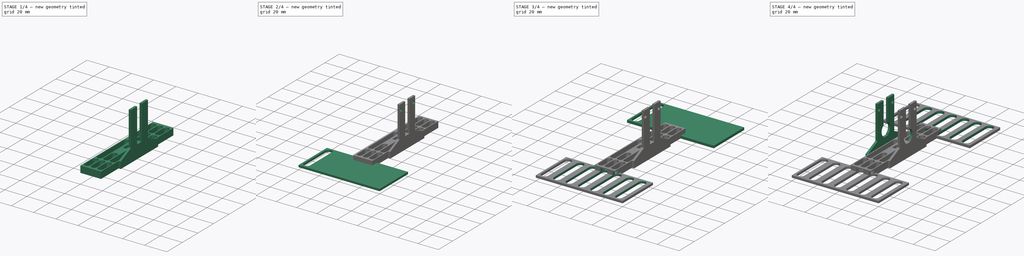
[diagram: build sequence overview — one tinted view per stage of 4, left to right]
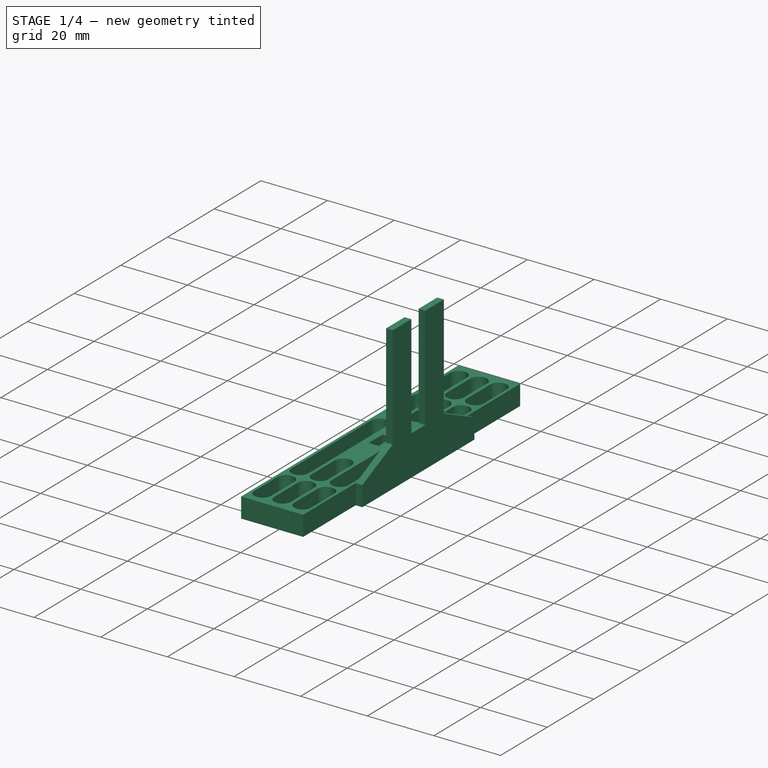
[diagram: stage 1 of 4 — iso view after this stage's code; geometry added in this stage tinted green]
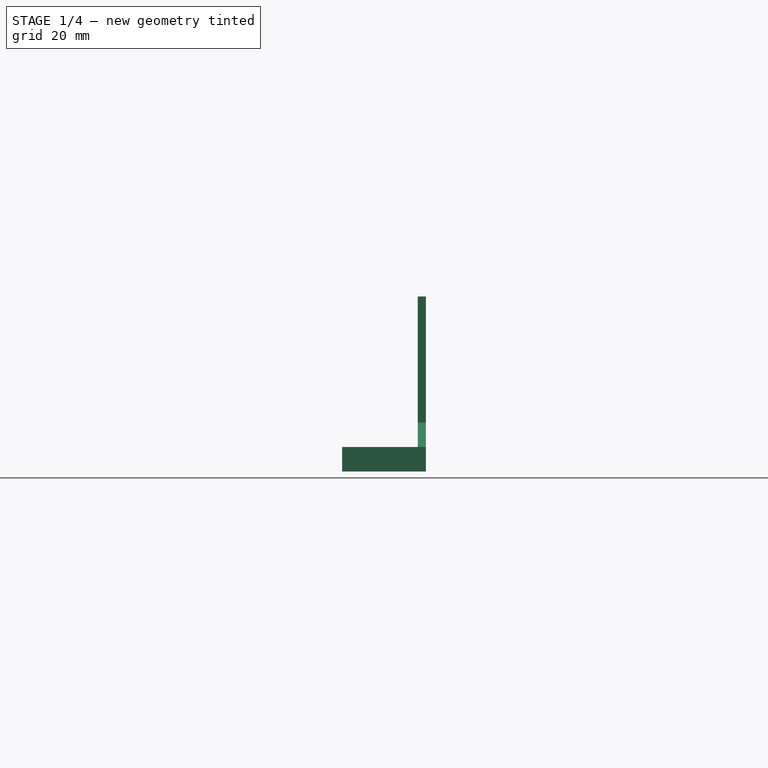
[diagram: stage 1 of 4 — front view after this stage's code; geometry added in this stage tinted green]
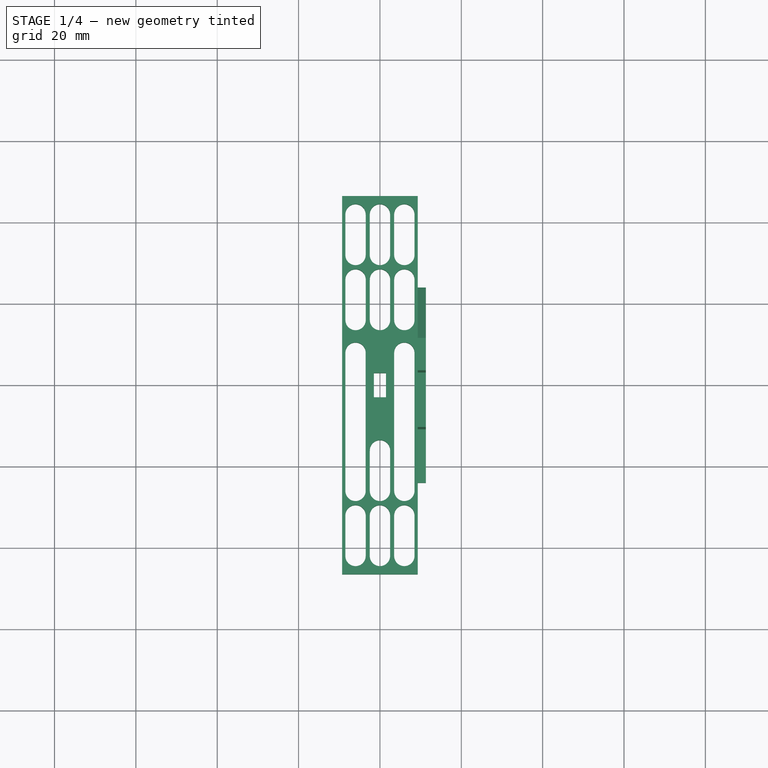
[diagram: stage 1 of 4 — top view after this stage's code; geometry added in this stage tinted green]
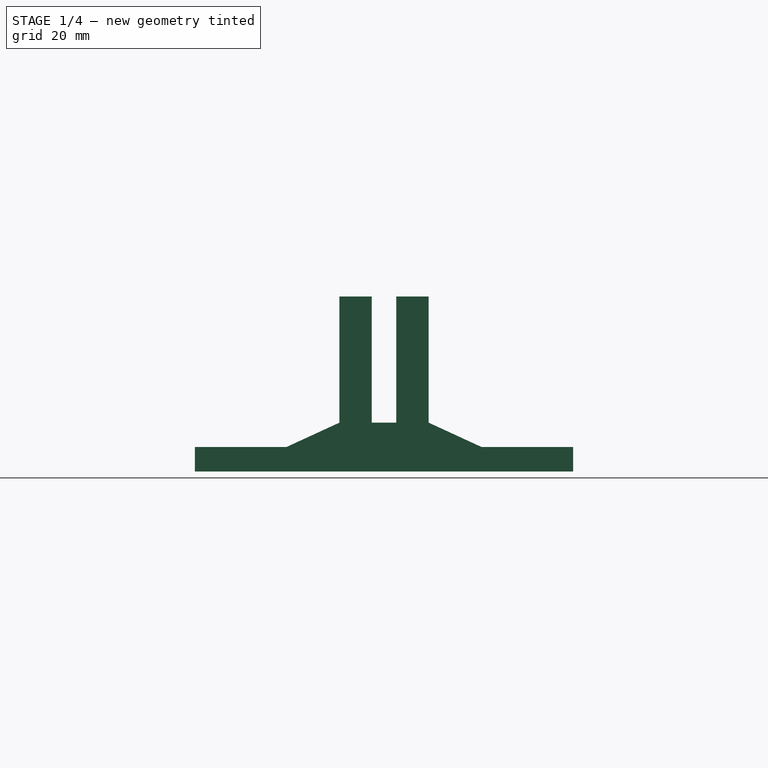
[diagram: stage 1 of 4 — right view after this stage's code; geometry added in this stage tinted green]
FCSTD DOCUMENT  (FreeCAD 0.19RUnknown)
Label: bar-car-3
License: All rights reserved
LicenseURL: http://en.wikipedia.org/wiki/All_rights_reserved
objects: Sketcher::SketchObject×10, PartDesign::Pocket×7, PartDesign::Pad×4, PartDesign::LinearPattern×2, PartDesign::Mirrored×1, PartDesign::Body×1
note: 36 computed .brp shape members not serialized (recipe doc carries the construction recipe); baked Part::Feature solids carry a one-line shape summary decoded from their .brp

FEATURE [Sketcher::SketchObject] Sketch
  FullyConstrained = false
  MapMode = 5
  Support = -> [XY_Plane]
  sketch-geometry (4):
    g0: LineSegment StartX=-9.3 StartY=46.5 StartZ=0 EndX=9.3 EndY=46.5 EndZ=0
    g1: LineSegment StartX=9.3 StartY=46.5 StartZ=0 EndX=9.3 EndY=-46.5 EndZ=0
    g2: LineSegment StartX=9.3 StartY=-46.5 StartZ=0 EndX=-9.3 EndY=-46.5 EndZ=0
    g3: LineSegment StartX=-9.3 StartY=-46.5 StartZ=0 EndX=-9.3 EndY=46.5 EndZ=0
  constraints (8):
    c: Coincident(g0,g1)
    c: Coincident(g1,g2)
    c: Coincident(g2,g3)
    c: Coincident(g3,g0)
    c: Horizontal(g0)
    c: Horizontal(g2)
    c: Vertical(g1)
    c: Vertical(g3)
FEATURE [PartDesign::Pad] Pad  label="Mittelbalken"
  Direction = (1,1,1)
  Length = 6
  Length2 = 100
  Profile = -> Sketch
  Reversed = true
  Type = 0
FEATURE [Sketcher::SketchObject] Sketch001
  FullyConstrained = false
  MapMode = 5
  Support = -> [Pad]
  sketch-geometry (4):
    g0: LineSegment StartX=-1.5 StartY=3 StartZ=0 EndX=1.5 EndY=3 EndZ=0
    g1: LineSegment StartX=1.5 StartY=3 StartZ=0 EndX=1.5 EndY=-3 EndZ=0
    g2: LineSegment StartX=1.5 StartY=-3 StartZ=0 EndX=-1.5 EndY=-3 EndZ=0
    g3: LineSegment StartX=-1.5 StartY=-3 StartZ=0 EndX=-1.5 EndY=3 EndZ=0
  constraints (8):
    c: Coincident(g0,g1)
    c: Coincident(g1,g2)
    c: Coincident(g2,g3)
    c: Coincident(g3,g0)
    c: Horizontal(g0)
    c: Horizontal(g2)
    c: Vertical(g1)
    c: Vertical(g3)
FEATURE [PartDesign::Pocket] Pocket
  BaseFeature = -> Pad
  Length = 6
  Length2 = 100
  Profile = -> Sketch001
  Type = 0
FEATURE [Sketcher::SketchObject] Sketch002
  FullyConstrained = false
  MapMode = 5
  Support = -> [Pocket]
  sketch-geometry (48):
    g0: ArcOfCircle CenterX=0 CenterY=-42 CenterZ=0 NormalX=0 NormalY=0 NormalZ=1 AngleXU=0 Radius=2.5 StartAngle=3.14159 EndAngle=6.28319
    g1: ArcOfCircle CenterX=0 CenterY=-32 CenterZ=0 NormalX=0 NormalY=0 NormalZ=1 AngleXU=0 Radius=2.5 StartAngle=0 EndAngle=3.14159
    g2: LineSegment StartX=2.5 StartY=-42 StartZ=0 EndX=2.5 EndY=-32 EndZ=0
    g3: LineSegment StartX=-2.5 StartY=-42 StartZ=0 EndX=-2.5 EndY=-32 EndZ=0
    g4: ArcOfCircle CenterX=-6 CenterY=-42 CenterZ=0 NormalX=0 NormalY=0 NormalZ=1 AngleXU=0 Radius=2.5 StartAngle=3.14159 EndAngle=6.28319
    g5: ArcOfCircle CenterX=-6 CenterY=-32 CenterZ=0 NormalX=0 NormalY=0 NormalZ=1 AngleXU=0 Radius=2.5 StartAngle=0 EndAngle=3.14159
    g6: LineSegment StartX=-3.5 StartY=-42 StartZ=0 EndX=-3.5 EndY=-32 EndZ=0
    g7: LineSegment StartX=-8.5 StartY=-42 StartZ=0 EndX=-8.5 EndY=-32 EndZ=0
    g8: ArcOfCircle CenterX=6 CenterY=-42 CenterZ=0 NormalX=0 NormalY=0 NormalZ=1 AngleXU=0 Radius=2.5 StartAngle=3.14159 EndAngle=6.28319
    g9: ArcOfCircle CenterX=6 CenterY=-32 CenterZ=0 NormalX=0 NormalY=0 NormalZ=1 AngleXU=0 Radius=2.5 StartAngle=0 EndAngle=3.14159
    g10: LineSegment StartX=8.5 StartY=-42 StartZ=0 EndX=8.5 EndY=-32 EndZ=0
    g11: LineSegment StartX=3.5 StartY=-42 StartZ=0 EndX=3.5 EndY=-32 EndZ=0
    g12: ArcOfCircle CenterX=0.012218 CenterY=-26 CenterZ=0 NormalX=0 NormalY=0 NormalZ=1 AngleXU=0 Radius=2.5 StartAngle=3.14159 EndAngle=6.28319
    g13: ArcOfCircle CenterX=0.012218 CenterY=-16 CenterZ=0 NormalX=0 NormalY=0 NormalZ=1 AngleXU=0 Radius=2.5 StartAngle=0 EndAngle=3.14159
    g14: LineSegment StartX=2.51222 StartY=-26 StartZ=0 EndX=2.51222 EndY=-16 EndZ=0
    g15: LineSegment StartX=-2.48778 StartY=-26 StartZ=0 EndX=-2.48778 EndY=-16 EndZ=0
    g16: ArcOfCircle CenterX=-6 CenterY=-26 CenterZ=0 NormalX=0 NormalY=0 NormalZ=1 AngleXU=0 Radius=2.49695 StartAngle=3.14159 EndAngle=6.28319
    g17: ArcOfCircle CenterX=-6 CenterY=8 CenterZ=0 NormalX=0 NormalY=0 NormalZ=1 AngleXU=0 Radius=2.49695 StartAngle=0 EndAngle=3.14159
    g18: LineSegment StartX=-3.50305 StartY=-26 StartZ=0 EndX=-3.50305 EndY=8 EndZ=0
    g19: LineSegment StartX=-8.49695 StartY=-26 StartZ=0 EndX=-8.49695 EndY=8 EndZ=0
    g20: ArcOfCircle CenterX=6 CenterY=-26 CenterZ=0 NormalX=0 NormalY=0 NormalZ=1 AngleXU=0 Radius=2.49695 StartAngle=3.14159 EndAngle=6.28319
    g21: ArcOfCircle CenterX=6 CenterY=8 CenterZ=0 NormalX=0 NormalY=0 NormalZ=1 AngleXU=0 Radius=2.49695 StartAngle=0 EndAngle=3.14159
    g22: LineSegment StartX=8.49695 StartY=-26 StartZ=0 EndX=8.49695 EndY=8 EndZ=0
    g23: LineSegment StartX=3.50305 StartY=-26 StartZ=0 EndX=3.50305 EndY=8 EndZ=0
    g24: ArcOfCircle CenterX=0 CenterY=42 CenterZ=0 NormalX=0 NormalY=0 NormalZ=1 AngleXU=0 Radius=2.5 StartAngle=0 EndAngle=3.14159
    g25: ArcOfCircle CenterX=0 CenterY=32 CenterZ=0 NormalX=0 NormalY=0 NormalZ=1 AngleXU=0 Radius=2.5 StartAngle=3.14159 EndAngle=6.28319
    g26: LineSegment StartX=2.5 StartY=42 StartZ=0 EndX=2.5 EndY=32 EndZ=0
    g27: LineSegment StartX=-2.5 StartY=42 StartZ=0 EndX=-2.5 EndY=32 EndZ=0
    g28: ArcOfCircle CenterX=-6 CenterY=42 CenterZ=0 NormalX=0 NormalY=0 NormalZ=1 AngleXU=0 Radius=2.5 StartAngle=0 EndAngle=3.14159
    g29: ArcOfCircle CenterX=-6 CenterY=32 CenterZ=0 NormalX=0 NormalY=0 NormalZ=1 AngleXU=0 Radius=2.5 StartAngle=3.14159 EndAngle=6.28319
    g30: LineSegment StartX=-3.5 StartY=42 StartZ=0 EndX=-3.5 EndY=32 EndZ=0
    g31: LineSegment StartX=-8.5 StartY=42 StartZ=0 EndX=-8.5 EndY=32 EndZ=0
    g32: ArcOfCircle CenterX=6 CenterY=42 CenterZ=0 NormalX=0 NormalY=0 NormalZ=1 AngleXU=0 Radius=2.5 StartAngle=0 EndAngle=3.14159
    g33: ArcOfCircle CenterX=6 CenterY=32 CenterZ=0 NormalX=0 NormalY=0 NormalZ=1 AngleXU=0 Radius=2.5 StartAngle=3.14159 EndAngle=6.28319
    g34: LineSegment StartX=8.5 StartY=42 StartZ=0 EndX=8.5 EndY=32 EndZ=0
    g35: LineSegment StartX=3.5 StartY=42 StartZ=0 EndX=3.5 EndY=32 EndZ=0
    g36: ArcOfCircle CenterX=0.012218 CenterY=26 CenterZ=0 NormalX=0 NormalY=0 NormalZ=1 AngleXU=0 Radius=2.5 StartAngle=0 EndAngle=3.14159
    g37: ArcOfCircle CenterX=0.012218 CenterY=16 CenterZ=0 NormalX=0 NormalY=0 NormalZ=1 AngleXU=0 Radius=2.5 StartAngle=3.14159 EndAngle=6.28319
    g38: LineSegment StartX=2.51222 StartY=26 StartZ=0 EndX=2.51222 EndY=16 EndZ=0
    g39: LineSegment StartX=-2.48778 StartY=26 StartZ=0 EndX=-2.48778 EndY=16 EndZ=0
    g40: ArcOfCircle CenterX=-5.98778 CenterY=26 CenterZ=0 NormalX=0 NormalY=0 NormalZ=1 AngleXU=0 Radius=2.5 StartAngle=0 EndAngle=3.14159
    g41: ArcOfCircle CenterX=-5.98778 CenterY=16 CenterZ=0 NormalX=0 NormalY=0 NormalZ=1 AngleXU=0 Radius=2.5 StartAngle=3.14159 EndAngle=6.28319
    g42: LineSegment StartX=-3.48778 StartY=26 StartZ=0 EndX=-3.48778 EndY=16 EndZ=0
    g43: LineSegment StartX=-8.48778 StartY=26 StartZ=0 EndX=-8.48778 EndY=16 EndZ=0
    g44: ArcOfCircle CenterX=6 CenterY=26 CenterZ=0 NormalX=0 NormalY=0 NormalZ=1 AngleXU=0 Radius=2.49695 StartAngle=0 EndAngle=3.14159
    g45: ArcOfCircle CenterX=6 CenterY=16 CenterZ=0 NormalX=0 NormalY=0 NormalZ=1 AngleXU=0 Radius=2.49695 StartAngle=3.14159 EndAngle=6.28319
    g46: LineSegment StartX=8.49695 StartY=26 StartZ=0 EndX=8.49695 EndY=16 EndZ=0
    g47: LineSegment StartX=3.50305 StartY=26 StartZ=0 EndX=3.50305 EndY=16 EndZ=0
  constraints (73):
    c: Tangent(g0,g3) = 1.5708
    c: Tangent(g0,g2) = -1.5708
    c: Tangent(g2,g1) = -1.5708
    c: Tangent(g3,g1) = 1.5708
    c: Vertical(g2)
    c: Equal(g0,g1)
    c: PointOnObject(g0,g-2)
    c: Tangent(g4,g7) = 1.5708
    c: Tangent(g4,g6) = -1.5708
    c: Tangent(g6,g5) = -1.5708
    c: Tangent(g7,g5) = 1.5708
    c: Vertical(g6)
    c: Equal(g4,g5)
    c: Tangent(g8,g11) = 1.5708
    c: Tangent(g8,g10) = -1.5708
    c: Tangent(g10,g9) = -1.5708
    c: Tangent(g11,g9) = 1.5708
    c: Vertical(g10)
    c: Equal(g8,g9)
    c: Tangent(g12,g15) = 1.5708
    c: Tangent(g12,g14) = -1.5708
    c: Tangent(g14,g13) = -1.5708
    c: Tangent(g15,g13) = 1.5708
    c: Vertical(g14)
    c: Equal(g12,g13)
    c: Tangent(g16,g19) = 1.5708
    c: Tangent(g16,g18) = -1.5708
    c: Tangent(g18,g17) = -1.5708
    c: Tangent(g19,g17) = 1.5708
    c: Vertical(g18)
    c: Equal(g16,g17)
    c: Tangent(g20,g23) = 1.5708
    c: Tangent(g20,g22) = -1.5708
    c: Tangent(g22,g21) = -1.5708
    c: Tangent(g23,g21) = 1.5708
    c: Vertical(g22)
    c: Equal(g20,g21)
    c: Tangent(g24,g27) = -1.5708
    c: Tangent(g24,g26) = 1.5708
    c: Tangent(g26,g25) = 1.5708
    c: Tangent(g27,g25) = -1.5708
    c: Vertical(g26)
    c: Equal(g24,g25)
    c: Tangent(g28,g31) = -1.5708
    c: Tangent(g28,g30) = 1.5708
    c: Tangent(g30,g29) = 1.5708
    c: Tangent(g31,g29) = -1.5708
    c: Vertical(g30)
    c: Equal(g28,g29)
    c: Tangent(g32,g35) = -1.5708
    c: Tangent(g32,g34) = 1.5708
    c: Tangent(g34,g33) = 1.5708
    c: Tangent(g35,g33) = -1.5708
    c: Vertical(g34)
    c: Equal(g32,g33)
    c: Tangent(g36,g39) = -1.5708
    c: Tangent(g36,g38) = 1.5708
    c: Tangent(g38,g37) = 1.5708
    c: Tangent(g39,g37) = -1.5708
    c: Vertical(g38)
    c: Equal(g36,g37)
    c: Tangent(g40,g43) = -1.5708
    c: Tangent(g40,g42) = 1.5708
    c: Tangent(g42,g41) = 1.5708
    c: Tangent(g43,g41) = -1.5708
    c: Vertical(g42)
    c: Equal(g40,g41)
    c: Tangent(g44,g47) = -1.5708
    c: Tangent(g44,g46) = 1.5708
    c: Tangent(g46,g45) = 1.5708
    c: Tangent(g47,g45) = -1.5708
    c: Vertical(g46)
    c: Equal(g44,g45)
FEATURE [PartDesign::Pocket] Pocket001
  BaseFeature = -> Pocket
  Length = 8
  Length2 = 100
  Profile = -> Sketch002
  Type = 0
FEATURE [Sketcher::SketchObject] Sketch003
  FullyConstrained = false
  MapMode = 5
  Placement = pos=(9.3,0,0) rot=(0.57735,0.57735,0.57735;2.0944rad)
  Support = -> [Pocket001]
  sketch-geometry (12):
    g0: LineSegment StartX=-24 StartY=-6 StartZ=0 EndX=-24 EndY=0 EndZ=0
    g1: LineSegment StartX=-24 StartY=0 StartZ=0 EndX=-10.9609 EndY=6 EndZ=0
    g2: LineSegment StartX=-10.9609 StartY=6 StartZ=0 EndX=-10.9609 EndY=37 EndZ=0
    g3: LineSegment StartX=-10.9609 StartY=37 StartZ=0 EndX=-3 EndY=37 EndZ=0
    g4: LineSegment StartX=-3 StartY=37 StartZ=0 EndX=-3 EndY=6 EndZ=0
    g5: LineSegment StartX=-3 StartY=6 StartZ=0 EndX=3 EndY=6 EndZ=0
    g6: LineSegment StartX=3 StartY=6 StartZ=0 EndX=3 EndY=37 EndZ=0
    g7: LineSegment StartX=3 StartY=37 StartZ=0 EndX=10.9718 EndY=37 EndZ=0
    g8: LineSegment StartX=10.9718 StartY=37 StartZ=0 EndX=10.9718 EndY=6 EndZ=0
    g9: LineSegment StartX=10.9718 StartY=6 StartZ=0 EndX=24 EndY=0 EndZ=0
    g10: LineSegment StartX=24 StartY=0 StartZ=0 EndX=24 EndY=-6 EndZ=0
    g11: LineSegment StartX=24 StartY=-6 StartZ=0 EndX=-24 EndY=-6 EndZ=0
  constraints (24):
    c: PointOnObject(g0,g-1)
    c: Vertical(g0)
    c: Coincident(g0,g1)
    c: Coincident(g1,g2)
    c: Vertical(g2)
    c: Coincident(g2,g3)
    c: Horizontal(g3)
    c: Coincident(g3,g4)
    c: Vertical(g4)
    c: Coincident(g4,g5)
    c: Horizontal(g5)
    c: Coincident(g5,g6)
    c: Vertical(g6)
    c: Coincident(g6,g7)
    c: Horizontal(g7)
    c: Coincident(g7,g8)
    c: Vertical(g8)
    c: Coincident(g8,g9)
    c: PointOnObject(g9,g-1)
    c: Coincident(g9,g10)
    c: Vertical(g10)
    c: Coincident(g10,g11)
    c: Coincident(g11,g0)
    c: Horizontal(g11)
FEATURE [PartDesign::Pad] Pad001  label="flans1"
  BaseFeature = -> Pocket001
  Direction = (1,1,1)
  Length = 2
  Length2 = 100
  Profile = -> Sketch003
  Type = 0
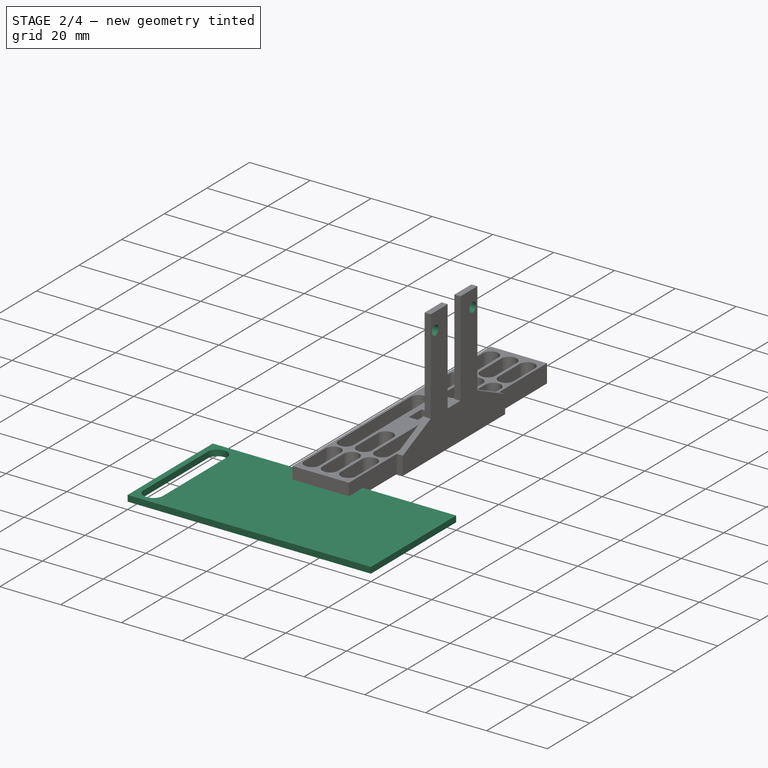
[diagram: stage 2 of 4 — iso view after this stage's code; geometry added in this stage tinted green]
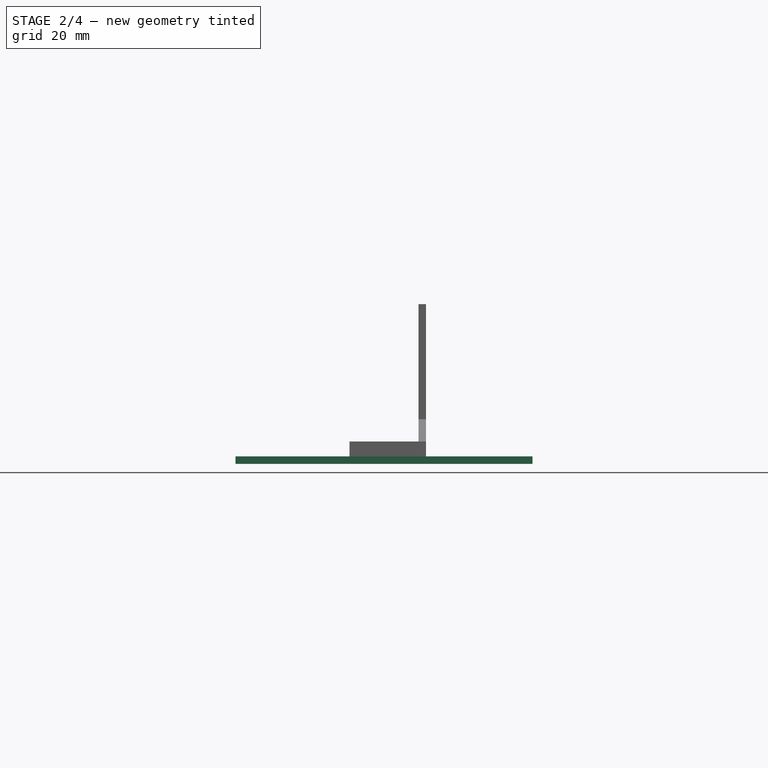
[diagram: stage 2 of 4 — front view after this stage's code; geometry added in this stage tinted green]
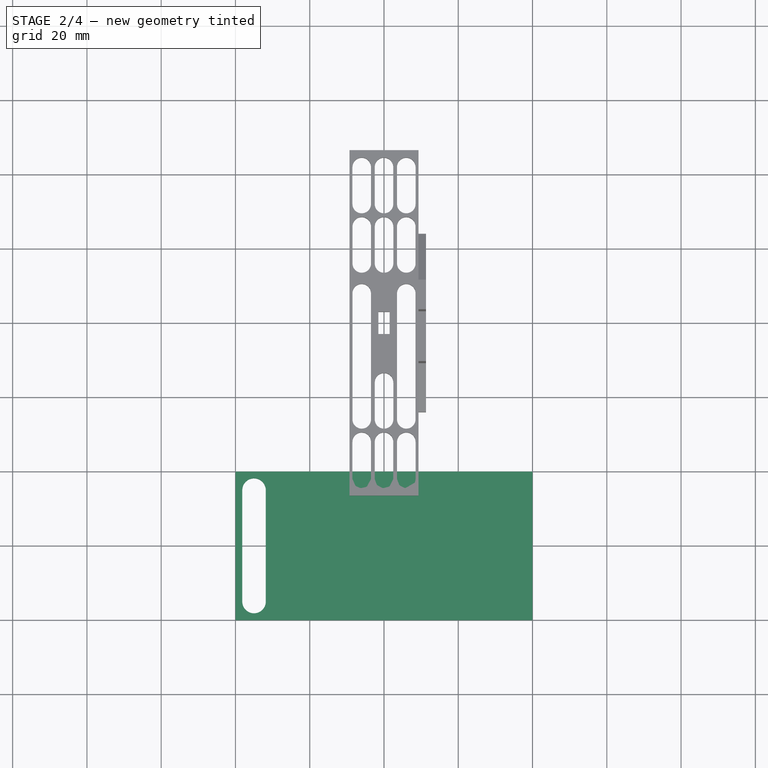
[diagram: stage 2 of 4 — top view after this stage's code; geometry added in this stage tinted green]
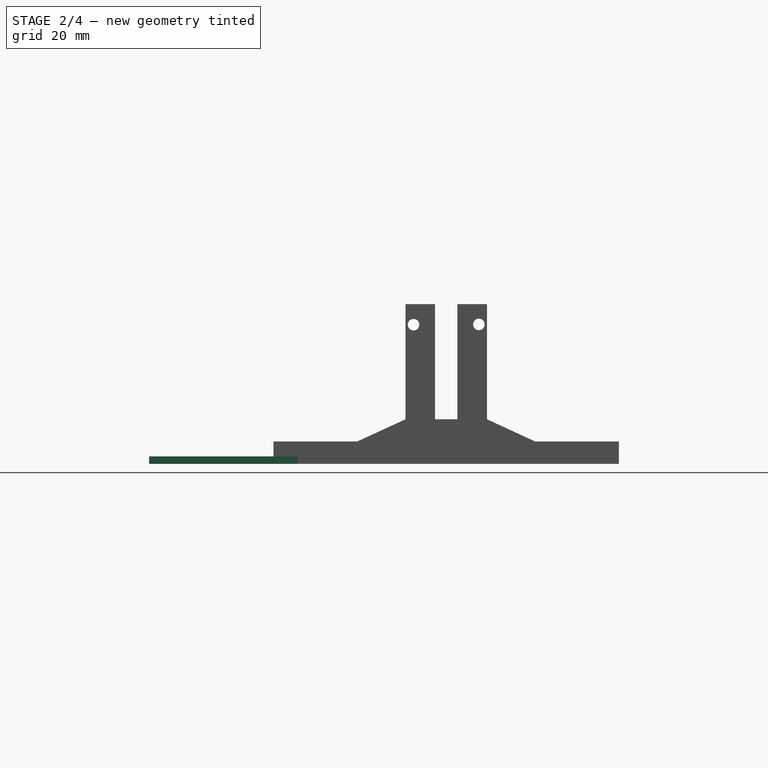
[diagram: stage 2 of 4 — right view after this stage's code; geometry added in this stage tinted green]
FEATURE [Sketcher::SketchObject] Sketch004
  FullyConstrained = false
  MapMode = 5
  Placement = pos=(11.3,0,0) rot=(0.57735,0.57735,0.57735;2.0944rad)
  sketch-geometry (2):
    g0: Circle CenterX=-8.8 CenterY=31.4641 CenterZ=0 NormalX=0 NormalY=0 NormalZ=1 AngleXU=0 Radius=1.55185
    g1: Circle CenterX=8.8 CenterY=31.5414 CenterZ=0 NormalX=0 NormalY=0 NormalZ=1 AngleXU=0 Radius=1.55214
FEATURE [PartDesign::Pocket] Pocket002  label="MotorHole"
  BaseFeature = -> Pad001
  Length = 4
  Length2 = 100
  Profile = -> Sketch004
  Type = 1
FEATURE [Sketcher::SketchObject] Sketch005
  FullyConstrained = false
  MapMode = 5
  Placement = pos=(0,0,-6) rot=(1,0,0;3.14159rad)
  Support = -> [Pocket002]
  sketch-geometry (4):
    g0: LineSegment StartX=-40 StartY=40 StartZ=0 EndX=40 EndY=40 EndZ=0
    g1: LineSegment StartX=40 StartY=40 StartZ=0 EndX=40 EndY=80 EndZ=0
    g2: LineSegment StartX=40 StartY=80 StartZ=0 EndX=-40 EndY=80 EndZ=0
    g3: LineSegment StartX=-40 StartY=80 StartZ=0 EndX=-40 EndY=40 EndZ=0
  constraints (8):
    c: Coincident(g0,g1)
    c: Coincident(g1,g2)
    c: Coincident(g2,g3)
    c: Coincident(g3,g0)
    c: Horizontal(g0)
    c: Horizontal(g2)
    c: Vertical(g1)
    c: Vertical(g3)
FEATURE [PartDesign::Pad] Pad002
  BaseFeature = -> Pocket002
  Direction = (1,1,1)
  Length = 2
  Length2 = 100
  Profile = -> Sketch005
  Reversed = true
  Type = 0
FEATURE [Sketcher::SketchObject] Sketch006
  FullyConstrained = false
  MapMode = 5
  Placement = pos=(0,0,-6) rot=(1,0,0;3.14159rad)
  Support = -> [Pad002]
  sketch-geometry (4):
    g0: ArcOfCircle CenterX=-35 CenterY=75 CenterZ=0 NormalX=0 NormalY=0 NormalZ=1 AngleXU=0 Radius=3.16352 StartAngle=-9e-16 EndAngle=3.14159
    g1: ArcOfCircle CenterX=-35 CenterY=45 CenterZ=0 NormalX=0 NormalY=0 NormalZ=1 AngleXU=0 Radius=3.16352 StartAngle=3.14159 EndAngle=6.28319
    g2: LineSegment StartX=-38.1635 StartY=75 StartZ=0 EndX=-38.1635 EndY=45 EndZ=0
    g3: LineSegment StartX=-31.8365 StartY=75 StartZ=0 EndX=-31.8365 EndY=45 EndZ=0
  constraints (6):
    c: Tangent(g0,g3) = 1.5708
    c: Tangent(g0,g2) = -1.5708
    c: Tangent(g2,g1) = -1.5708
    c: Tangent(g3,g1) = 1.5708
    c: Vertical(g2)
    c: Equal(g0,g1)
FEATURE [PartDesign::Pocket] Pocket003
  BaseFeature = -> Pad002
  Length = 5
  Length2 = 100
  Profile = -> Sketch006
  Type = 0
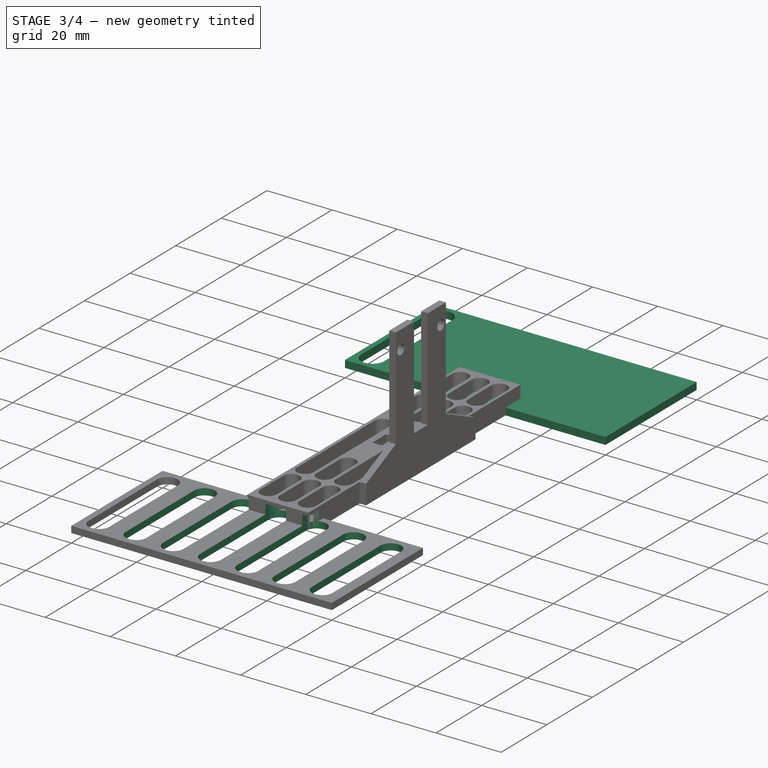
[diagram: stage 3 of 4 — iso view after this stage's code; geometry added in this stage tinted green]
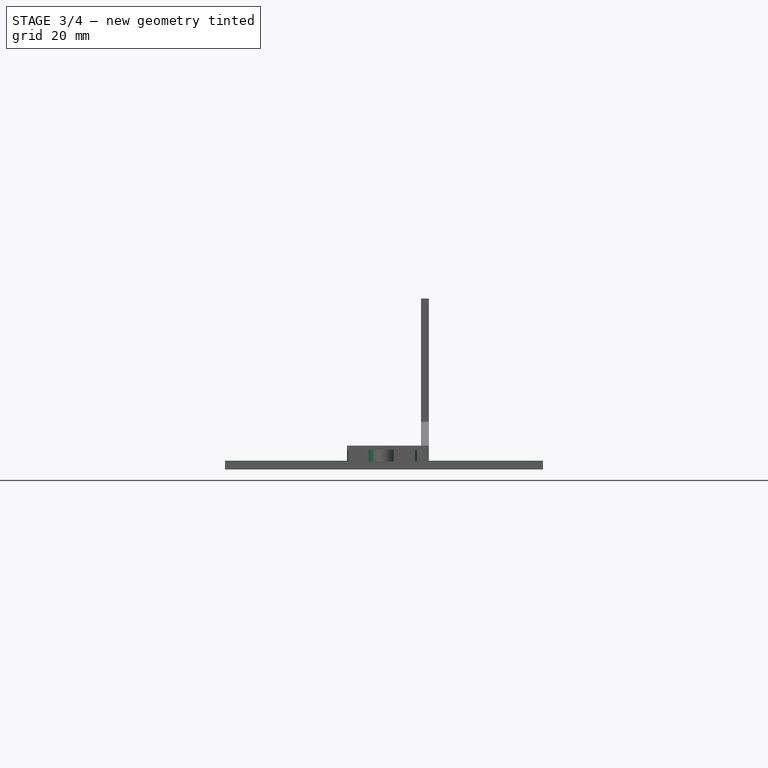
[diagram: stage 3 of 4 — front view after this stage's code; geometry added in this stage tinted green]
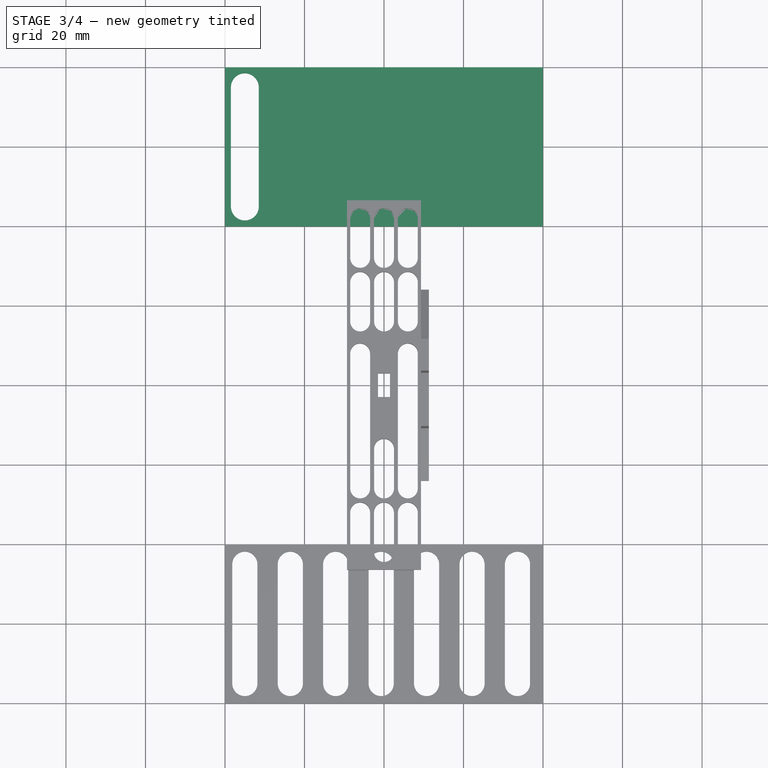
[diagram: stage 3 of 4 — top view after this stage's code; geometry added in this stage tinted green]
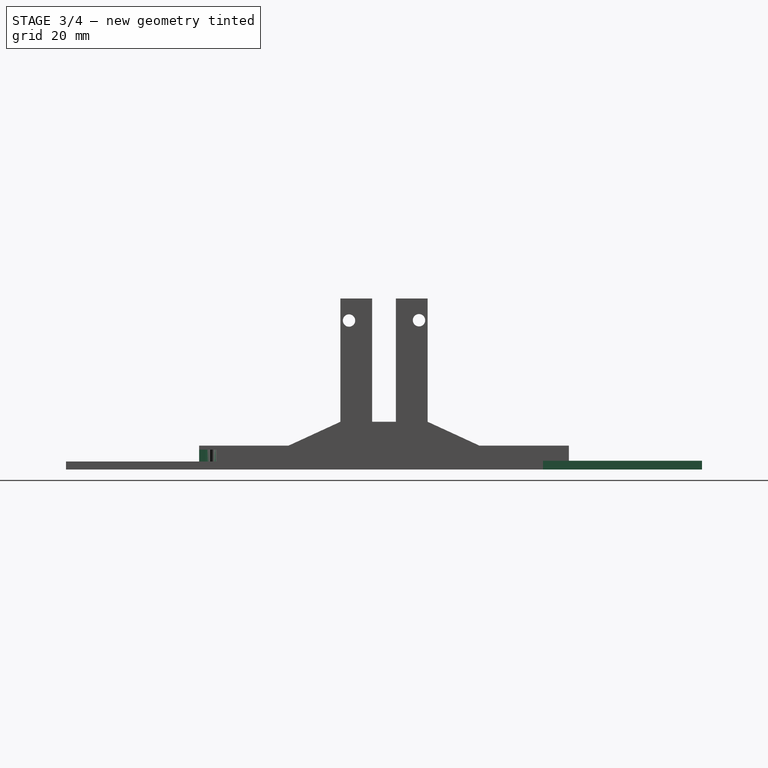
[diagram: stage 3 of 4 — right view after this stage's code; geometry added in this stage tinted green]
FEATURE [PartDesign::LinearPattern] LinearPattern
  BaseFeature = -> Pocket003
  Direction = -> Sketch006 [H_Axis]
  Length = 80
  Occurrences = 8
  Originals = -> [Pocket003]
FEATURE [Sketcher::SketchObject] Sketch007
  FullyConstrained = false
  MapMode = 5
  Placement = pos=(0,0,-6) rot=(1,0,0;3.14159rad)
  Support = -> [LinearPattern]
  sketch-geometry (4):
    g0: LineSegment StartX=-40 StartY=-40 StartZ=0 EndX=40 EndY=-40 EndZ=0
    g1: LineSegment StartX=40 StartY=-40 StartZ=0 EndX=40 EndY=-80 EndZ=0
    g2: LineSegment StartX=40 StartY=-80 StartZ=0 EndX=-40 EndY=-80 EndZ=0
    g3: LineSegment StartX=-40 StartY=-80 StartZ=0 EndX=-40 EndY=-40 EndZ=0
  constraints (8):
    c: Coincident(g0,g1)
    c: Coincident(g1,g2)
    c: Coincident(g2,g3)
    c: Coincident(g3,g0)
    c: Horizontal(g0)
    c: Horizontal(g2)
    c: Vertical(g1)
    c: Vertical(g3)
FEATURE [PartDesign::Pad] Pad003
  BaseFeature = -> LinearPattern
  Direction = (1,1,1)
  Length = 2.2
  Length2 = 100
  Profile = -> Sketch007
  Reversed = true
  Type = 0
FEATURE [Sketcher::SketchObject] Sketch008
  FullyConstrained = false
  MapMode = 5
  Placement = pos=(0,0,-6) rot=(1,0,0;3.14159rad)
  Support = -> [Pad003]
  sketch-geometry (4):
    g0: ArcOfCircle CenterX=-35 CenterY=-45 CenterZ=0 NormalX=0 NormalY=0 NormalZ=1 AngleXU=0 Radius=3.50935 StartAngle=1e-16 EndAngle=3.14159
    g1: ArcOfCircle CenterX=-35 CenterY=-75 CenterZ=0 NormalX=0 NormalY=0 NormalZ=1 AngleXU=0 Radius=3.50935 StartAngle=3.14159 EndAngle=6.28319
    g2: LineSegment StartX=-38.5094 StartY=-45 StartZ=0 EndX=-38.5094 EndY=-75 EndZ=0
    g3: LineSegment StartX=-31.4906 StartY=-45 StartZ=0 EndX=-31.4906 EndY=-75 EndZ=0
  constraints (6):
    c: Tangent(g0,g3) = 1.5708
    c: Tangent(g0,g2) = -1.5708
    c: Tangent(g2,g1) = -1.5708
    c: Tangent(g3,g1) = 1.5708
    c: Vertical(g2)
    c: Equal(g0,g1)
FEATURE [PartDesign::Pocket] Pocket004
  BaseFeature = -> Pad003
  Length = 4
  Length2 = 100
  Profile = -> Sketch008
  Type = 0
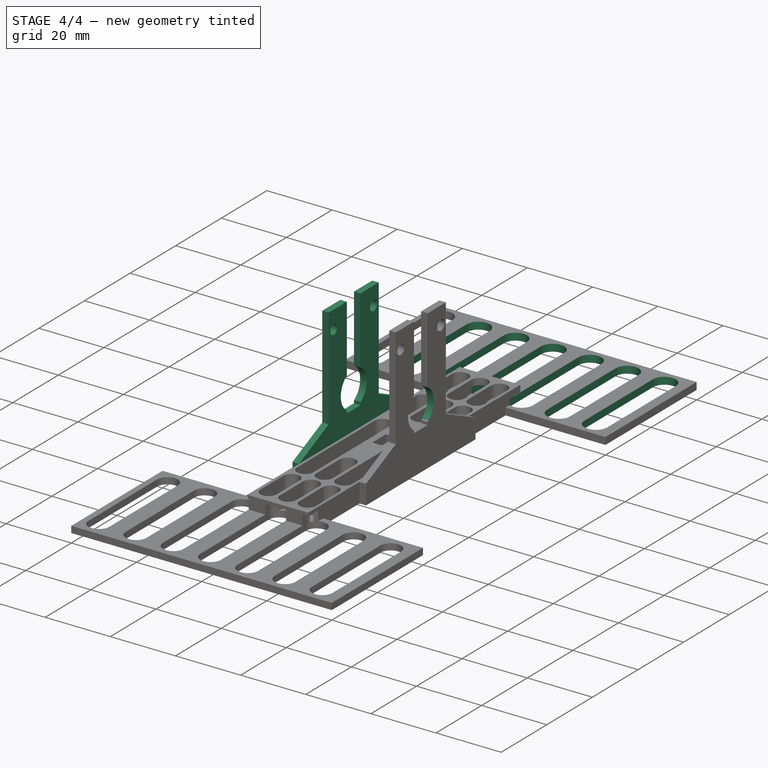
[diagram: stage 4 of 4 — iso view after this stage's code; geometry added in this stage tinted green]
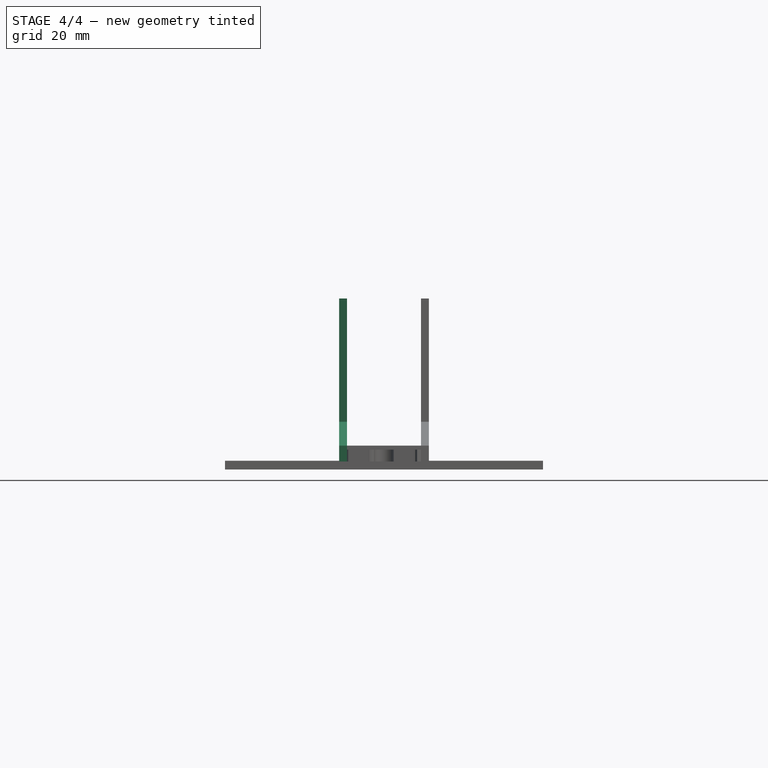
[diagram: stage 4 of 4 — front view after this stage's code; geometry added in this stage tinted green]
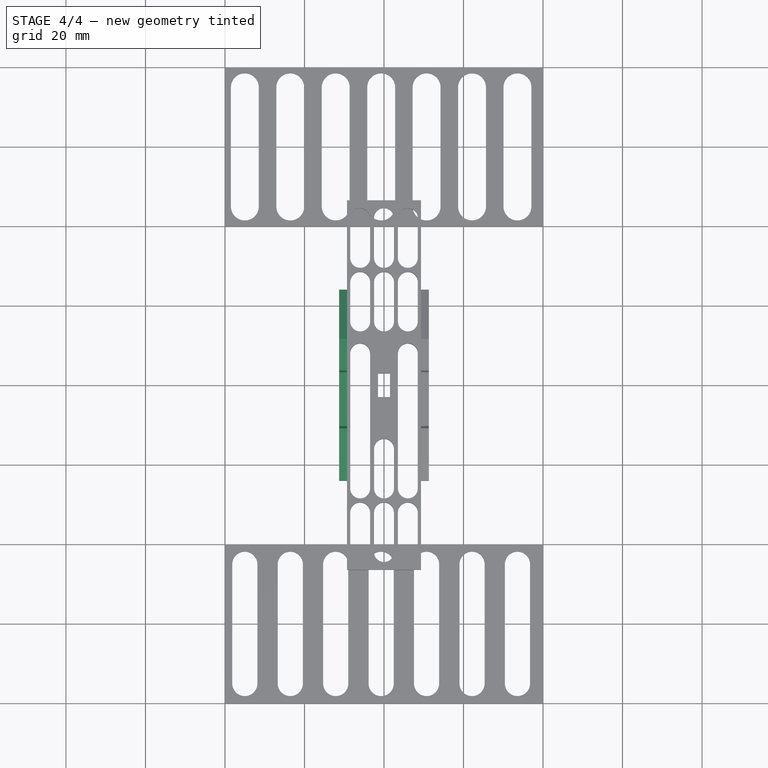
[diagram: stage 4 of 4 — top view after this stage's code; geometry added in this stage tinted green]
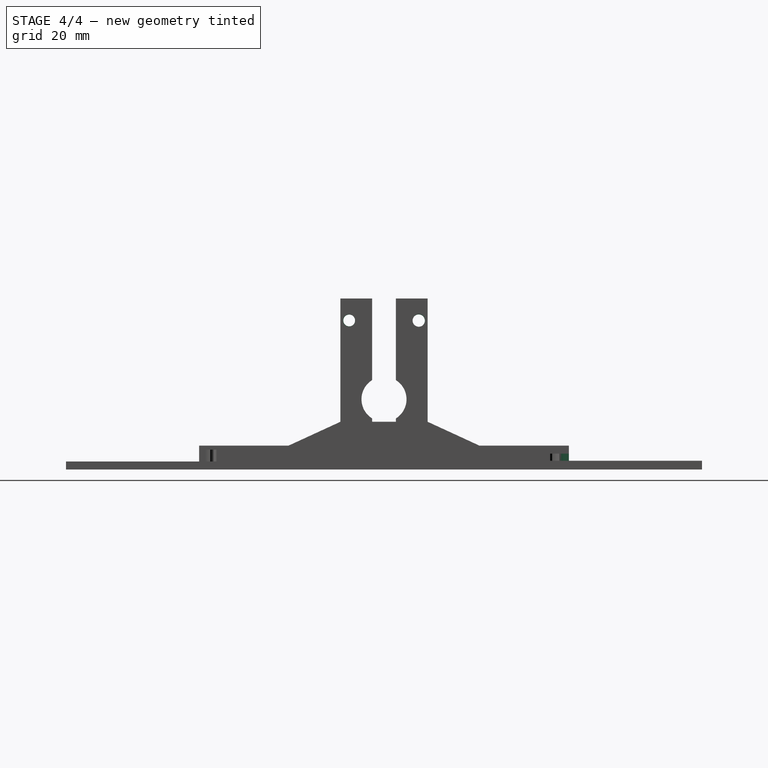
[diagram: stage 4 of 4 — right view after this stage's code; geometry added in this stage tinted green]
FEATURE [PartDesign::Mirrored] Mirrored
  BaseFeature = -> Pocket004
  MirrorPlane = -> YZ_Plane
  Originals = -> [Pad001]
FEATURE [PartDesign::Pocket] Pocket005
  BaseFeature = -> Mirrored
  Length = 0
  Length2 = 15
  Type = 4
FEATURE [PartDesign::LinearPattern] LinearPattern001
  BaseFeature = -> Pocket005
  Direction = -> Sketch008 [H_Axis]
  Length = 80
  Occurrences = 8
  Originals = -> [Pocket004]
FEATURE [Sketcher::SketchObject] Sketch009
  FullyConstrained = false
  MapMode = 5
  Placement = pos=(-11.3,2.5e-15,-2.5e-15) rot=(-0.57735,0.57735,0.57735;4.18879rad)
  Support = -> [LinearPattern001]
  sketch-geometry (1):
    g0: Circle CenterX=-8.73568 CenterY=31.4482 CenterZ=0 NormalX=0 NormalY=0 NormalZ=1 AngleXU=0 Radius=1.54168
FEATURE [PartDesign::Pocket] Pocket006
  BaseFeature = -> LinearPattern001
  Length = 5
  Length2 = 100
  Profile = -> Sketch009
  Type = 1
FEATURE [PartDesign::Body] Body
  Group = -> [Sketch,Pad,Sketch001,Pocket,Sketch002,Pocket001,Sketch003,Pad001,Sketch004,Pocket002,Sketch005,Pad002,Sketch006,Pocket003,LinearPattern,Sketch007,Pad003,Sketch008,Pocket004,Mirrored,Pocket005,LinearPattern001,Sketch009,Pocket006]
  Origin = -> Origin
  Tip = -> Pocket006
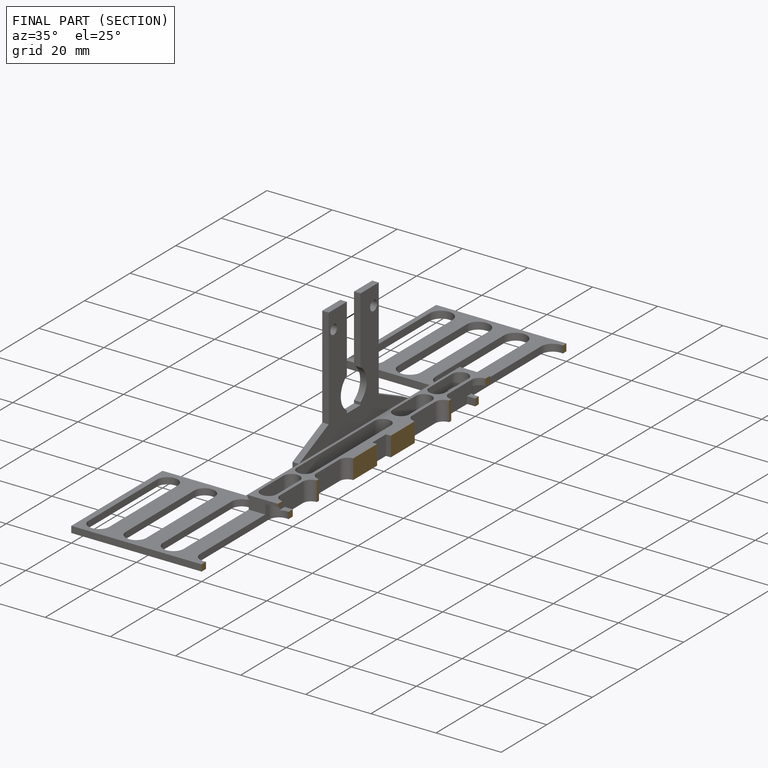
[diagram: finished part — half-section view (interior)]
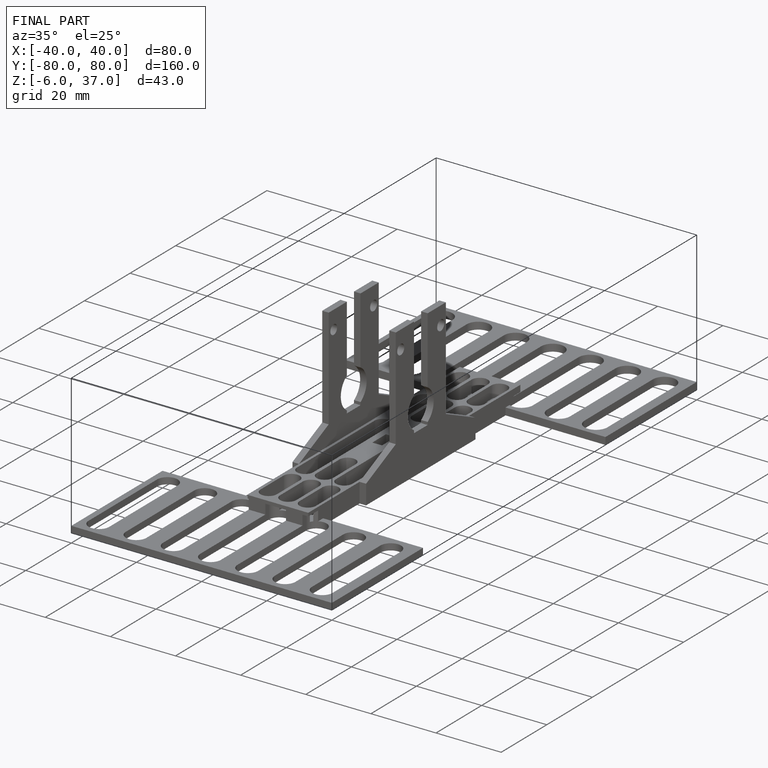
[diagram: finished part — iso view with bounding-box wireframe]
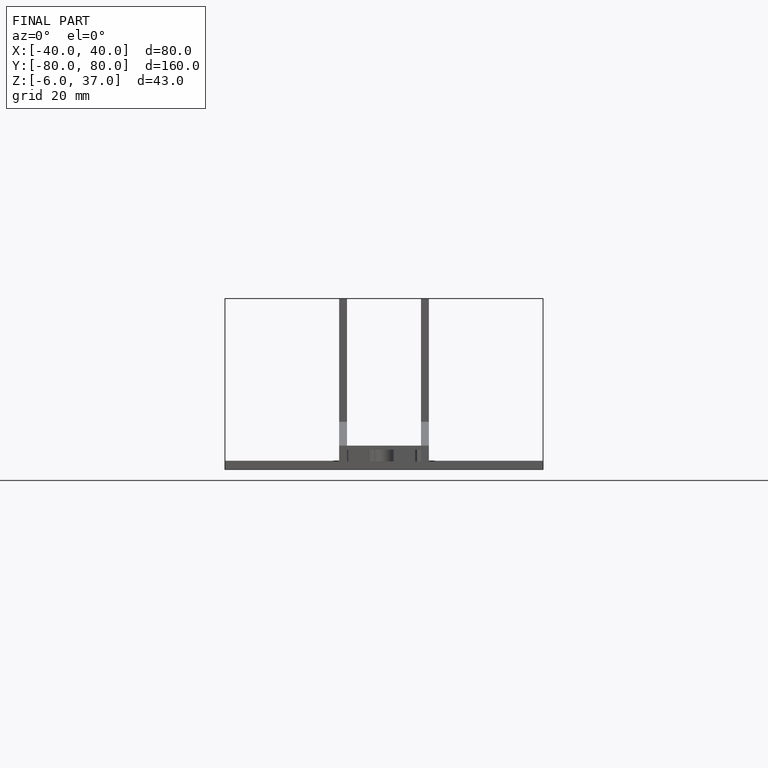
[diagram: finished part — front view with bounding-box wireframe]
